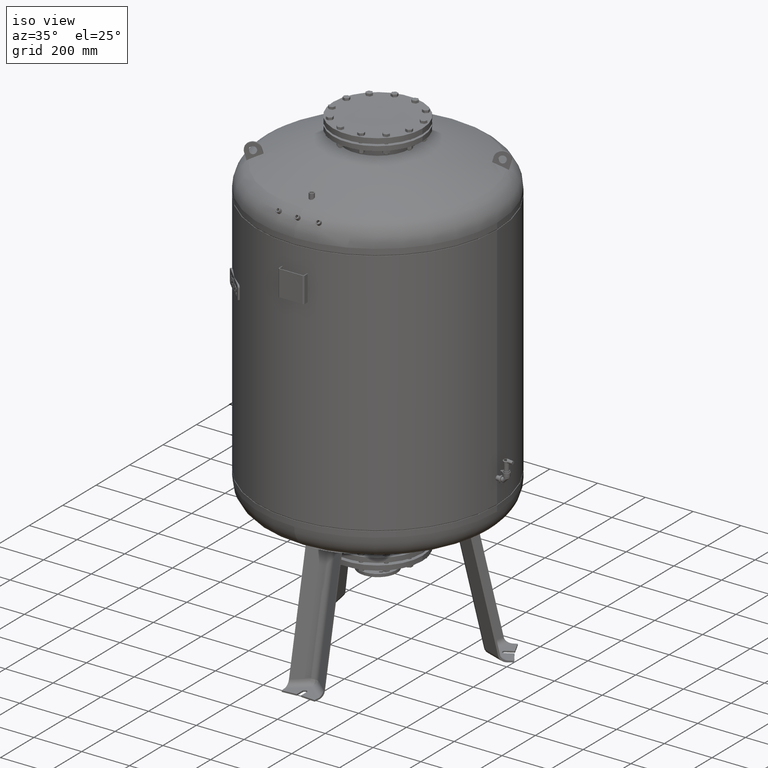
[diagram: clean part render]
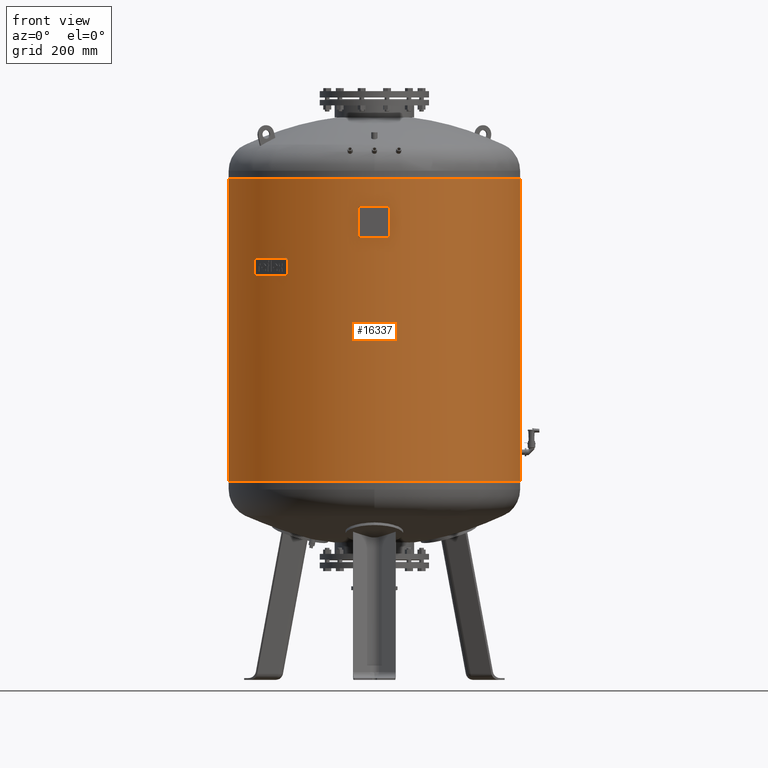
[diagram: tour spotlight — one face highlighted and labeled with its STEP entity id]
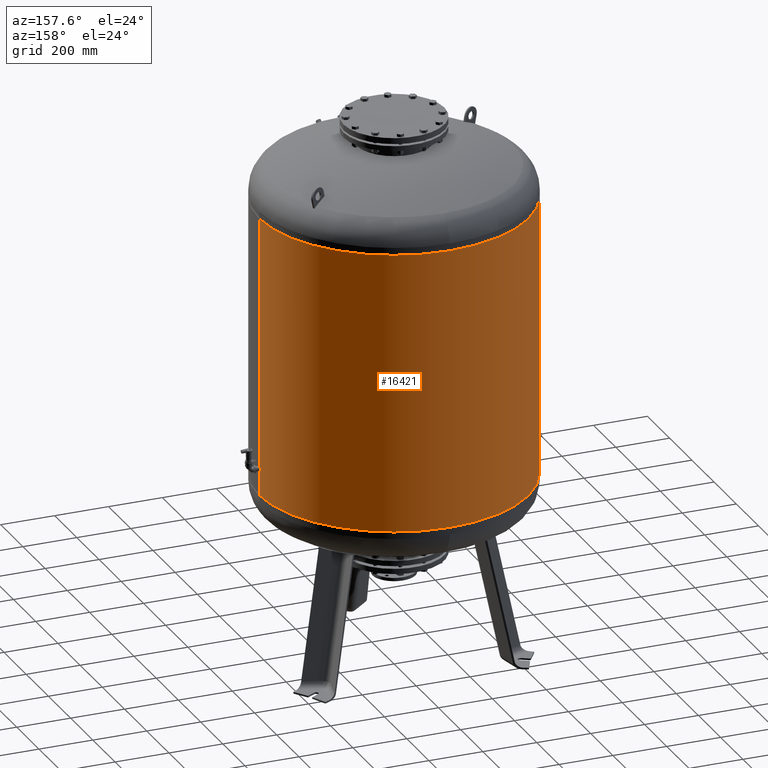
[diagram: tour spotlight — one face highlighted and labeled with its STEP entity id]
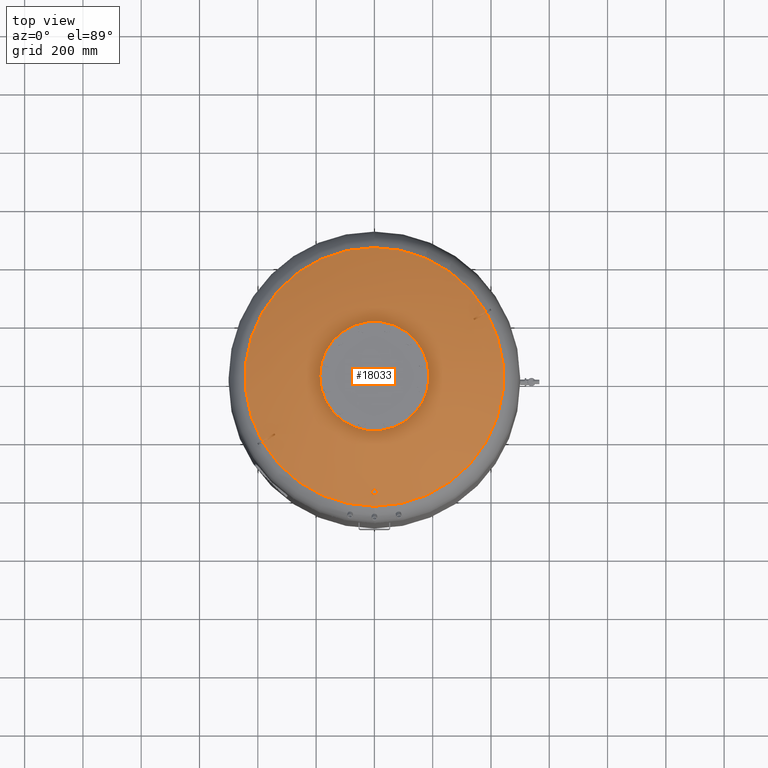
[diagram: tour spotlight — one face highlighted and labeled with its STEP entity id]
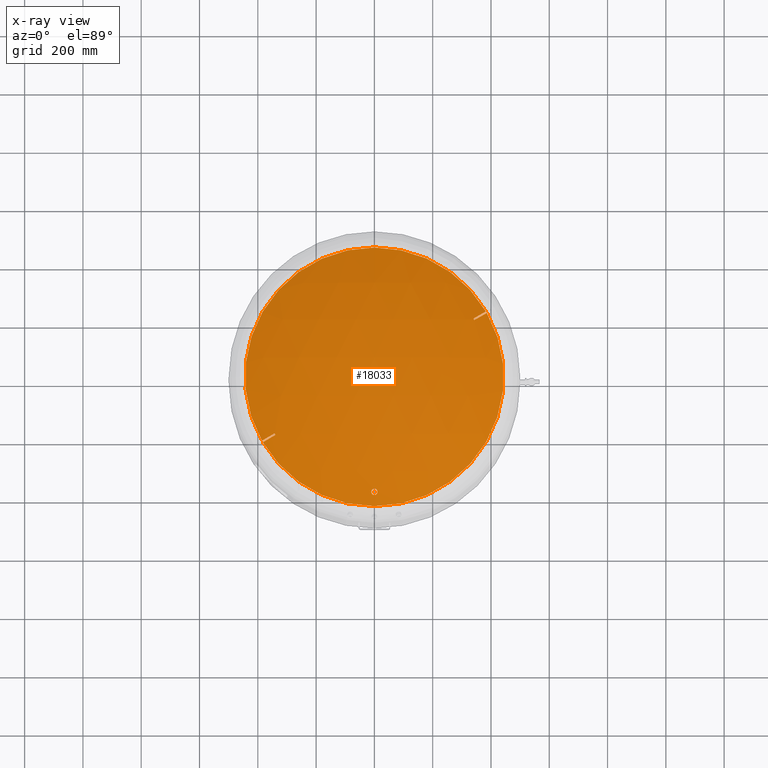
[diagram: x-ray of the same camera — body ghosted, this tour face saturated]
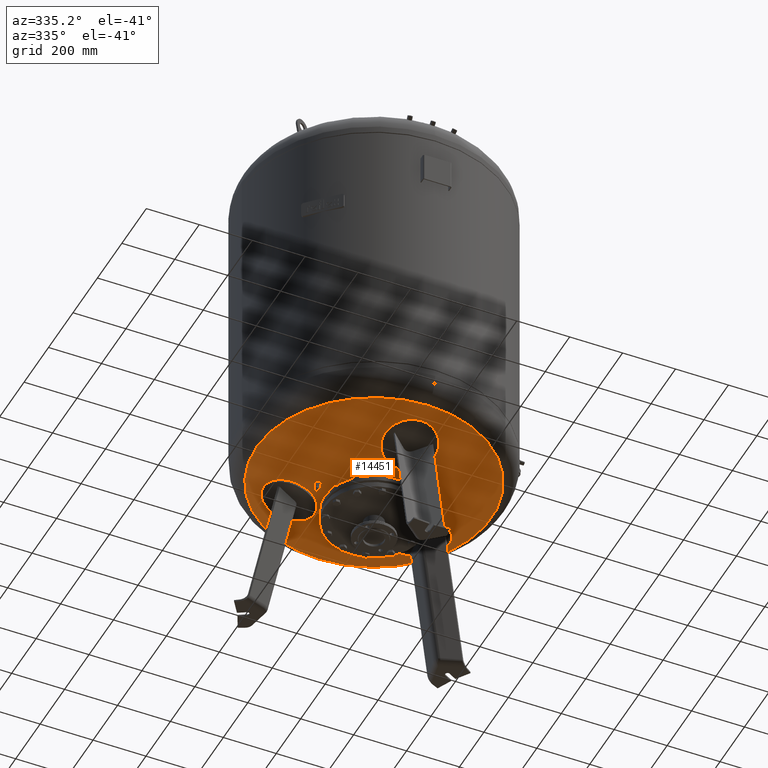
[diagram: tour spotlight — one face highlighted and labeled with its STEP entity id]
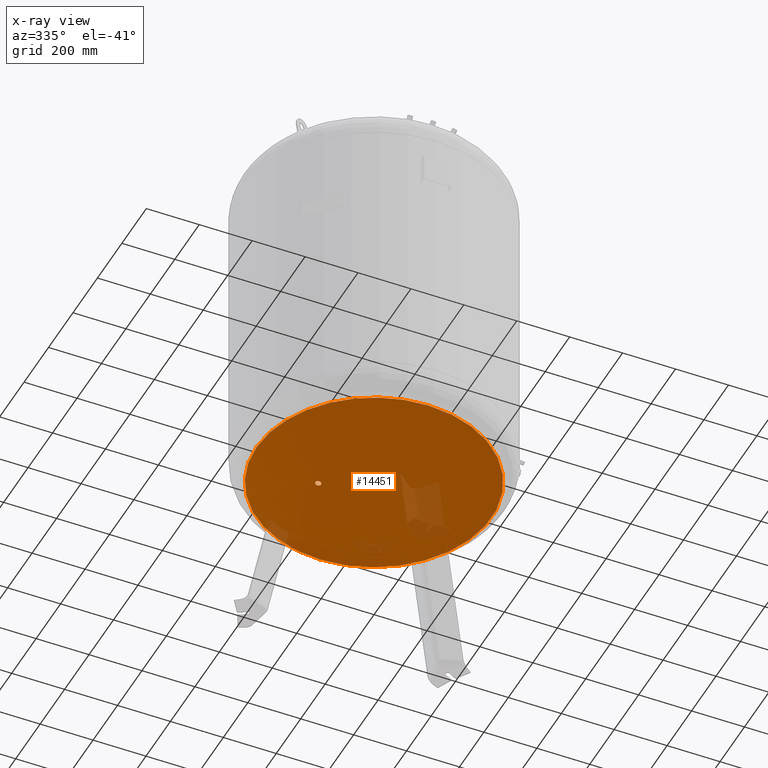
[diagram: x-ray of the same camera — body ghosted, this tour face saturated]
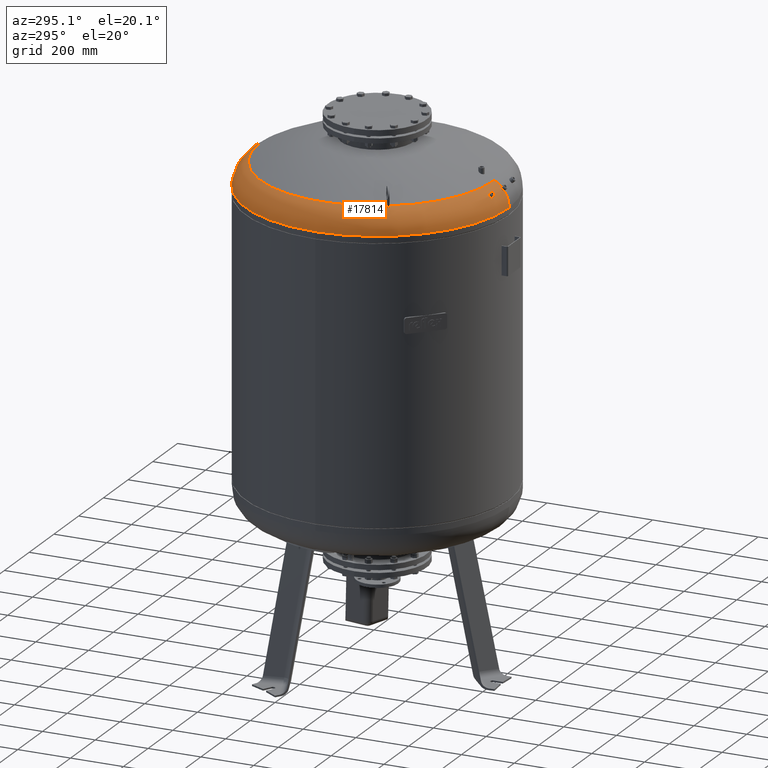
[diagram: tour spotlight — one face highlighted and labeled with its STEP entity id]
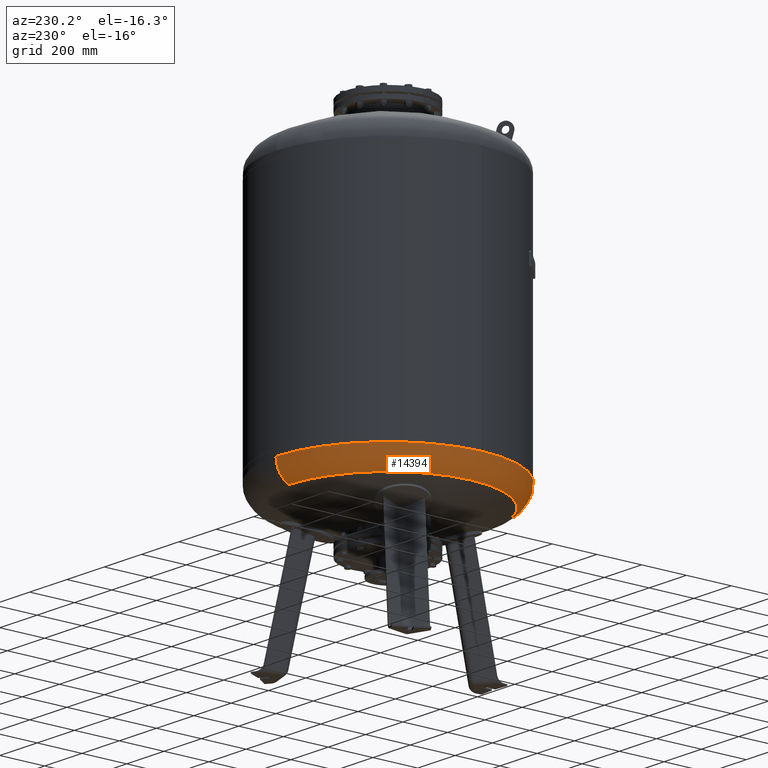
[diagram: tour spotlight — one face highlighted and labeled with its STEP entity id]
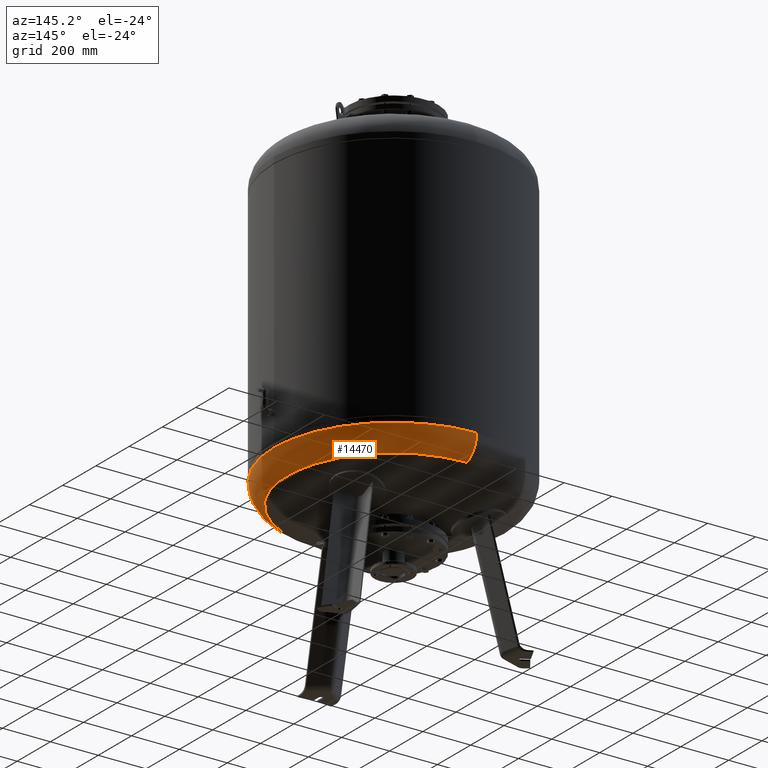
[diagram: tour spotlight — one face highlighted and labeled with its STEP entity id]
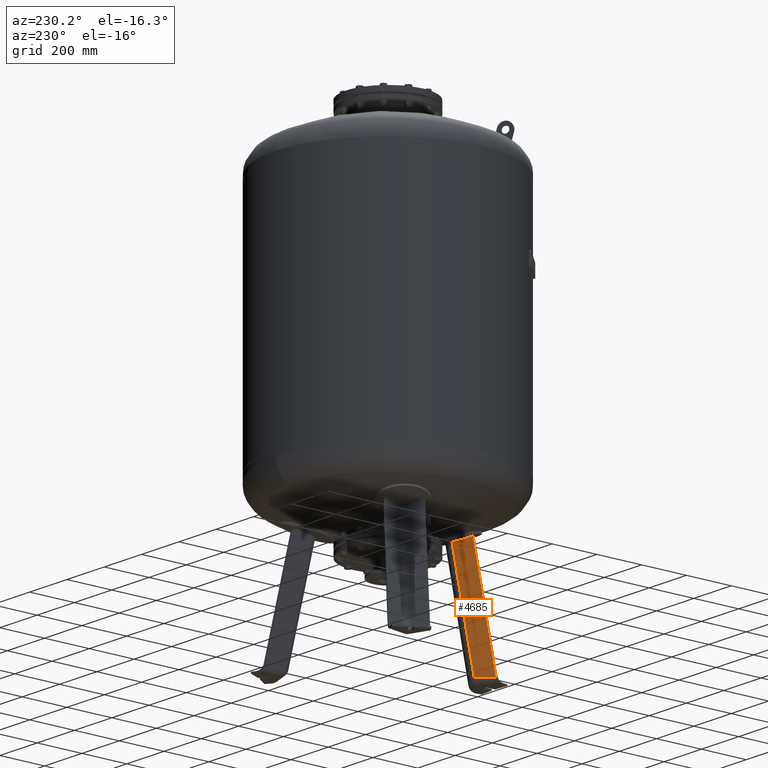
[diagram: tour spotlight — one face highlighted and labeled with its STEP entity id]
A machine part: a face-by-face anatomy tour. The part has 940 B-rep faces; the first image is the clean iso view, then the 8 largest visible faces are spotlighted one at a time (largest first), each with its STEP entity span.

Face 1 — front view, entity #16337. In plain terms, the highlighted cylindrical surface (partial cylindrical patch) has radius 500 mm, axis along (0, 0, 1).
Definition (entity closure, byte-faithful):
#16296=CARTESIAN_POINT('',(8.297411E-015,0.0,1452.250000000000000));
#16297=DIRECTION('',(3.104738E-017,0.0,1.0));
#16298=DIRECTION('',(1.0,0.0,0.0));
#16299=AXIS2_PLACEMENT_3D('',#16296,#16297,#16298);
#16300=CYLINDRICAL_SURFACE('',#16299,500.000000000000570);
#16301=CARTESIAN_POINT('',(500.000000000000570,0.0,1719.500000000000000));
#16302=VERTEX_POINT('',#16301);
#16303=CARTESIAN_POINT('',(499.999999999999890,0.0,680.500000000000000));
#16304=VERTEX_POINT('',#16303);
#16305=CARTESIAN_POINT('',(500.000000000000570,0.0,1719.500000000000000));
#16306=DIRECTION('',(0.0,0.0,-1.0));
#16307=VECTOR('',#16306,1039.0);
#16308=LINE('',#16305,#16307);
#16309=EDGE_CURVE('',#16302,#16304,#16308,.T.);
#16310=ORIENTED_EDGE('',*,*,#16309,.F.);
#16311=CARTESIAN_POINT('',(-500.000000000000570,-6.123032E-014,1719.500000000000000));
#16312=VERTEX_POINT('',#16311);
#16313=CARTESIAN_POINT('',(1.659482E-014,0.0,1719.500000000000000));
#16314=DIRECTION('',(0.0,0.0,1.0));
#16315=DIRECTION('',(1.0,0.0,0.0));
#16316=AXIS2_PLACEMENT_3D('',#16313,#16314,#16315);
#16317=CIRCLE('',#16316,500.000000000000570);
#16318=EDGE_CURVE('',#16312,#16302,#16317,.T.);
#16319=ORIENTED_EDGE('',*,*,#16318,.F.);
#16320=CARTESIAN_POINT('',(-499.999999999999890,-6.123032E-014,680.500000000000000));
#16321=VERTEX_POINT('',#16320);
#16322=CARTESIAN_POINT('',(-500.000000000000570,-6.123032E-014,1719.500000000000000));
#16323=DIRECTION('',(0.0,0.0,-1.0));
#16324=VECTOR('',#16323,1039.0);
#16325=LINE('',#16322,#16324);
#16326=EDGE_CURVE('',#16312,#16321,#16325,.T.);
#16327=ORIENTED_EDGE('',*,*,#16326,.T.);
#16328=CARTESIAN_POINT('',(-1.659482E-014,0.0,680.500000000000000));
#16329=DIRECTION('',(0.0,0.0,1.0));
#16330=DIRECTION('',(1.0,0.0,0.0));
#16331=AXIS2_PLACEMENT_3D('',#16328,#16329,#16330);
#16332=CIRCLE('',#16331,499.999999999999890);
#16333=EDGE_CURVE('',#16321,#16304,#16332,.T.);
#16334=ORIENTED_EDGE('',*,*,#16333,.T.);
#16335=EDGE_LOOP('',(#16310,#16319,#16327,#16334));
#16336=FACE_OUTER_BOUND('',#16335,.T.);
#16337=ADVANCED_FACE('',(#16336),#16300,.T.);

Face 2 — auxiliary view, entity #16421. In plain terms, the highlighted cylindrical surface (partial cylindrical patch) has radius 500 mm, axis along (0, 0, 1).
Definition (entity closure, byte-faithful):
#16301=CARTESIAN_POINT('',(500.000000000000570,0.0,1719.500000000000000));
#16302=VERTEX_POINT('',#16301);
#16303=CARTESIAN_POINT('',(499.999999999999890,0.0,680.500000000000000));
#16304=VERTEX_POINT('',#16303);
#16305=CARTESIAN_POINT('',(500.000000000000570,0.0,1719.500000000000000));
#16306=DIRECTION('',(0.0,0.0,-1.0));
#16307=VECTOR('',#16306,1039.0);
#16308=LINE('',#16305,#16307);
#16309=EDGE_CURVE('',#16302,#16304,#16308,.T.);
#16311=CARTESIAN_POINT('',(-500.000000000000570,-6.123032E-014,1719.500000000000000));
#16312=VERTEX_POINT('',#16311);
#16320=CARTESIAN_POINT('',(-499.999999999999890,-6.123032E-014,680.500000000000000));
#16321=VERTEX_POINT('',#16320);
#16322=CARTESIAN_POINT('',(-500.000000000000570,-6.123032E-014,1719.500000000000000));
#16323=DIRECTION('',(0.0,0.0,-1.0));
#16324=VECTOR('',#16323,1039.0);
#16325=LINE('',#16322,#16324);
#16326=EDGE_CURVE('',#16312,#16321,#16325,.T.);
#16394=CARTESIAN_POINT('',(-1.659482E-014,0.0,680.500000000000000));
#16395=DIRECTION('',(0.0,0.0,1.0));
#16396=DIRECTION('',(1.0,0.0,0.0));
#16397=AXIS2_PLACEMENT_3D('',#16394,#16395,#16396);
#16398=CIRCLE('',#16397,499.999999999999890);
#16399=EDGE_CURVE('',#16304,#16321,#16398,.T.);
#16404=CARTESIAN_POINT('',(8.297411E-015,0.0,1452.250000000000000));
#16405=DIRECTION('',(3.104738E-017,0.0,1.0));
#16406=DIRECTION('',(1.0,0.0,0.0));
#16407=AXIS2_PLACEMENT_3D('',#16404,#16405,#16406);
#16408=CYLINDRICAL_SURFACE('',#16407,500.000000000000570);
#16409=ORIENTED_EDGE('',*,*,#16309,.T.);
#16410=ORIENTED_EDGE('',*,*,#16399,.T.);
#16411=ORIENTED_EDGE('',*,*,#16326,.F.);
#16412=CARTESIAN_POINT('',(1.659482E-014,0.0,1719.500000000000000));
#16413=DIRECTION('',(0.0,0.0,1.0));
#16414=DIRECTION('',(1.0,0.0,0.0));
#16415=AXIS2_PLACEMENT_3D('',#16412,#16413,#16414);
#16416=CIRCLE('',#16415,500.000000000000570);
#16417=EDGE_CURVE('',#16302,#16312,#16416,.T.);
#16418=ORIENTED_EDGE('',*,*,#16417,.F.);
#16419=EDGE_LOOP('',(#16409,#16410,#16411,#16418));
#16420=FACE_OUTER_BOUND('',#16419,.T.);
#16421=ADVANCED_FACE('',(#16420),#16408,.T.);

Face 3 — top view, entity #18033. An x-ray twin of the same camera follows (body ghosted, this face saturated) — the face is partly hidden behind the body. In plain terms, the highlighted spherical surface has radius 1006 mm.
Definition (entity closure, byte-faithful):
#17253=CARTESIAN_POINT('',(-3.908790E-014,-405.650000000000260,1854.588984020556200));
#17254=VERTEX_POINT('',#17253);
#17270=CARTESIAN_POINT('',(-3.640557E-014,-384.350000000000310,1863.683321083045000));
#17271=VERTEX_POINT('',#17270);
#17278=CARTESIAN_POINT('',(-3.640557E-014,-384.350000000000310,1863.683321083045000));
#17279=CARTESIAN_POINT('',(-0.665860152353655,-384.350000000000310,1863.683321083045000));
#17280=CARTESIAN_POINT('',(-1.352442942655010,-384.413493201343950,1863.656345664296600));
#17281=CARTESIAN_POINT('',(-2.713633355070848,-384.678206448291690,1863.543865327939600));
#17282=CARTESIAN_POINT('',(-3.388255468701884,-384.879363254131820,1863.458386961982800));
#17283=CARTESIAN_POINT('',(-4.677454669311818,-385.406826358996680,1863.234199350034900));
#17284=CARTESIAN_POINT('',(-5.293206366508510,-385.733580979358980,1863.095298570944600));
#17285=CARTESIAN_POINT('',(-6.428331697670093,-386.481719264671140,1862.777177035073200));
#17286=CARTESIAN_POINT('',(-6.947700117297760,-386.903109139287950,1862.597952275997200));
#17287=CARTESIAN_POINT('',(-7.909636287544324,-387.834081206853450,1862.201861809002800));
#17288=CARTESIAN_POINT('',(-8.376160366441745,-388.383081861034950,1861.968214492085100));
#17289=CARTESIAN_POINT('',(-9.192501053923625,-389.573989263622760,1861.461152965227000));
#17290=CARTESIAN_POINT('',(-9.542402861482010,-390.215846098780390,1861.187758697381000));
#17291=CARTESIAN_POINT('',(-10.101594014471235,-391.549872709911260,1860.619263158526100));
#17292=CARTESIAN_POINT('',(-10.311280290466055,-392.242948286479990,1860.323775010501800));
#17293=CARTESIAN_POINT('',(-10.585512486448511,-393.632242428390440,1859.731167120131900));
#17294=CARTESIAN_POINT('',(-10.650000000000041,-394.328470643908420,1859.434042975025200));
#17295=CARTESIAN_POINT('',(-10.650000000000041,-395.671928854454110,1858.860441368647100));
#17296=CARTESIAN_POINT('',(-10.585436755065611,-396.368459275389510,1858.562914493158800));
#17297=CARTESIAN_POINT('',(-10.310997028739381,-397.758168296740220,1857.968999874574400));
#17298=CARTESIAN_POINT('',(-10.101180573862214,-398.451357011695900,1857.672608062775900));
#17299=CARTESIAN_POINT('',(-9.541744437114174,-399.785480792532890,1857.101906129284300));
#17300=CARTESIAN_POINT('',(-9.191730053175796,-400.427319361017400,1856.827210366023300));
#17301=CARTESIAN_POINT('',(-8.375195247171206,-401.618141837792960,1856.317358849592200));
#17302=CARTESIAN_POINT('',(-7.908589297177705,-402.167076661190660,1856.082225431730900));
#17303=CARTESIAN_POINT('',(-6.946718708499929,-403.097708589657710,1855.683472710236900));
#17304=CARTESIAN_POINT('',(-6.427520590182271,-403.518874737441710,1855.502952873024500));
#17305=CARTESIAN_POINT('',(-5.292718252443229,-404.266681241268540,1855.182351663167100));
#17306=CARTESIAN_POINT('',(-4.677118496836026,-404.593327823473600,1855.042269013025400));
#17307=CARTESIAN_POINT('',(-3.388156219151599,-405.120660706392070,1854.816088223712100));
#17308=CARTESIAN_POINT('',(-2.713616870227714,-405.321795323072650,1854.729798811288700));
#17309=CARTESIAN_POINT('',(-1.352501892994667,-405.586496768903600,1854.616232898850700));
#17310=CARTESIAN_POINT('',(-0.665911592797193,-405.650000000000260,1854.588984020556400));
#17311=CARTESIAN_POINT('',(-3.908790E-014,-405.650000000000260,1854.588984020556400));
#17312=B_SPLINE_CURVE_WITH_KNOTS('',3,(#17278,#17279,#17280,#17281,#17282,#17283,#17284,#17285,#17286,#17287,#17288,#17289,#17290,#17291,#17292,#17293,#17294,#17295,#17296,#17297,#17298,#17299,#17300,#17301,#17302,#17303,#17304,#17305,#17306,#17307,#17308,#17309,#17310,#17311),.UNSPECIFIED.,.F.,.U.,(4,2,2,2,2,2,2,2,2,2,2,2,2,2,2,2,4),(33.510705381107229,35.508285838168085,37.505866295228941,39.503446752289797,41.501027209350653,43.691556182371102,45.882085155391550,48.072614128411999,50.263143101432441,52.454975238236486,54.646807375040531,56.838639511844576,59.030471648648621,61.028206427040075,63.025941205431536,65.023675983822997,67.021410762214458),.UNSPECIFIED.);
#17313=EDGE_CURVE('',#17271,#17254,#17312,.T.);
#17534=CARTESIAN_POINT('',(2.959885E-014,443.777777777777600,1836.827383252533800));
#17535=VERTEX_POINT('',#17534);
#17543=CARTESIAN_POINT('',(382.814047410498800,224.481894937152840,1836.827383252533800));
#17544=VERTEX_POINT('',#17543);
#17545=CARTESIAN_POINT('',(1.205637E-015,-1.895250E-014,1836.827383252533800));
#17546=DIRECTION('',(0.0,0.0,-1.0));
#17547=DIRECTION('',(1.0,0.0,0.0));
#17548=AXIS2_PLACEMENT_3D('',#17545,#17546,#17547);
#17549=CIRCLE('',#17548,443.777777777777600);
#17550=EDGE_CURVE('',#17535,#17544,#17549,.T.);
#17577=CARTESIAN_POINT('',(385.814047410498740,219.285742514446160,1836.827383252533800));
#17578=VERTEX_POINT('',#17577);
#17590=CARTESIAN_POINT('',(-2.474646E-014,-443.777777777777600,1836.827383252533800));
#17591=VERTEX_POINT('',#17590);
#17592=CARTESIAN_POINT('',(1.205637E-015,-1.895250E-014,1836.827383252533800));
#17593=DIRECTION('',(0.0,0.0,-1.0));
#17594=DIRECTION('',(1.0,0.0,0.0));
#17595=AXIS2_PLACEMENT_3D('',#17592,#17593,#17594);
#17596=CIRCLE('',#17595,443.777777777777600);
#17597=EDGE_CURVE('',#17578,#17591,#17596,.T.);
#17714=CARTESIAN_POINT('',(-382.814047410493060,-224.481894937162560,1836.827383252533800));
#17715=VERTEX_POINT('',#17714);
#17716=CARTESIAN_POINT('',(1.205637E-015,-1.895250E-014,1836.827383252533800));
#17717=DIRECTION('',(0.0,0.0,-1.0));
#17718=DIRECTION('',(1.0,0.0,0.0));
#17719=AXIS2_PLACEMENT_3D('',#17716,#17717,#17718);
#17720=CIRCLE('',#17719,443.777777777777600);
#17721=EDGE_CURVE('',#17591,#17715,#17720,.T.);
#17748=CARTESIAN_POINT('',(-385.814047410493120,-219.285742514455960,1836.827383252533800));
#17749=VERTEX_POINT('',#17748);
#17761=CARTESIAN_POINT('',(1.205637E-015,-1.895250E-014,1836.827383252533800));
#17762=DIRECTION('',(0.0,0.0,-1.0));
#17763=DIRECTION('',(1.0,0.0,0.0));
#17764=AXIS2_PLACEMENT_3D('',#17761,#17762,#17763);
#17765=CIRCLE('',#17764,443.777777777777600);
#17766=EDGE_CURVE('',#17749,#17535,#17765,.T.);
#17932=CARTESIAN_POINT('',(9.910502E-014,-1.847992E-013,933.999999999999890));
#17933=DIRECTION('',(0.0,-1.0,0.0));
#17934=DIRECTION('',(-1.0,0.0,0.0));
#17935=AXIS2_PLACEMENT_3D('',#17932,#17933,#17934);
#17936=SPHERICAL_SURFACE('',#17935,1006.000000000000100);
#17937=CARTESIAN_POINT('',(-339.751865728368670,-199.619932751095800,1859.611447737408100));
#17938=VERTEX_POINT('',#17937);
#17939=CARTESIAN_POINT('',(1.500000000004920,-2.598076211361895,933.999999999999890));
#17940=DIRECTION('',(0.499999999999994,-0.866025403784442,0.0));
#17941=DIRECTION('',(0.0,0.0,1.0));
#17942=AXIS2_PLACEMENT_3D('',#17939,#17940,#17941);
#17943=CIRCLE('',#17942,1005.995526829021300);
#17944=EDGE_CURVE('',#17938,#17715,#17943,.T.);
#17945=ORIENTED_EDGE('',*,*,#17944,.T.);
#17946=ORIENTED_EDGE('',*,*,#17721,.F.);
#17947=ORIENTED_EDGE('',*,*,#17597,.F.);
#17948=CARTESIAN_POINT('',(342.751865728374640,194.423780328378940,1859.611447737408100));
#17949=VERTEX_POINT('',#17948);
#17950=CARTESIAN_POINT('',(1.500000000004958,-2.598076211361873,933.999999999999890));
#17951=DIRECTION('',(0.500000000000006,-0.866025403784435,0.0));
#17952=DIRECTION('',(0.0,0.0,1.0));
#17953=AXIS2_PLACEMENT_3D('',#17950,#17951,#17952);
#17954=CIRCLE('',#17953,1005.995526829021500);
#17955=EDGE_CURVE('',#17578,#17949,#17954,.T.);
#17956=ORIENTED_EDGE('',*,*,#17955,.T.);
#17957=CARTESIAN_POINT('',(339.751865728374580,199.619932751085570,1859.611447737407800));
#17958=VERTEX_POINT('',#17957);
#17959=CARTESIAN_POINT('',(110.683197430718480,63.902973831394576,898.593010303164870));
#17960=DIRECTION('',(-0.834590199910595,-0.481850876581413,0.266981143436977));
#17961=DIRECTION('',(0.0,0.484652475916126,0.874706795211040));
#17962=AXIS2_PLACEMENT_3D('',#17959,#17960,#17961);
#17963=CIRCLE('',#17962,997.220128568725610);
#17964=EDGE_CURVE('',#17949,#17958,#17963,.T.);
#17965=ORIENTED_EDGE('',*,*,#17964,.T.);
#17966=CARTESIAN_POINT('',(-1.499999999995094,2.598076211344762,933.999999999999890));
#17967=DIRECTION('',(-0.500000000000006,0.866025403784435,0.0));
#17968=DIRECTION('',(0.0,0.0,-1.0));
#17969=AXIS2_PLACEMENT_3D('',#17966,#17967,#17968);
#17970=CIRCLE('',#17969,1005.995526829021500);
#17971=EDGE_CURVE('',#17958,#17544,#17970,.T.);
#17972=ORIENTED_EDGE('',*,*,#17971,.T.);
#17973=ORIENTED_EDGE('',*,*,#17550,.F.);
#17974=ORIENTED_EDGE('',*,*,#17766,.F.);
#17975=CARTESIAN_POINT('',(-342.751865728368730,-194.423780328389170,1859.611447737407800));
#17976=VERTEX_POINT('',#17975);
#17977=CARTESIAN_POINT('',(-1.499999999995070,2.598076211344809,933.999999999999890));
#17978=DIRECTION('',(-0.499999999999994,0.866025403784442,0.0));
#17979=DIRECTION('',(0.0,0.0,-1.0));
#17980=AXIS2_PLACEMENT_3D('',#17977,#17978,#17979);
#17981=CIRCLE('',#17980,1005.995526829021300);
#17982=EDGE_CURVE('',#17749,#17976,#17981,.T.);
#17983=ORIENTED_EDGE('',*,*,#17982,.T.);
#17984=CARTESIAN_POINT('',(-110.683197430719060,-63.902973831393346,898.593010303164870));
#17985=DIRECTION('',(0.834590199910602,0.481850876581402,0.266981143436977));
#17986=DIRECTION('',(0.0,0.484652475916135,-0.874706795211035));
#17987=AXIS2_PLACEMENT_3D('',#17984,#17985,#17986);
#17988=CIRCLE('',#17987,997.220128568725390);
#17989=EDGE_CURVE('',#17976,#17938,#17988,.T.);
#17990=ORIENTED_EDGE('',*,*,#17989,.T.);
#17991=EDGE_LOOP('',(#17945,#17946,#17947,#17956,#17965,#17972,#17973,#17974,#17983,#17990));
#17992=FACE_OUTER_BOUND('',#17991,.T.);
#17993=CARTESIAN_POINT('',(-3.908790E-014,-405.650000000000260,1854.588984020556200));
#17994=CARTESIAN_POINT('',(0.665911592797114,-405.650000000000260,1854.588984020556400));
#17995=CARTESIAN_POINT('',(1.352501892994589,-405.586496768903600,1854.616232898850700));
#17996=CARTESIAN_POINT('',(2.713616870227634,-405.321795323072650,1854.729798811288700));
#17997=CARTESIAN_POINT('',(3.388156219151519,-405.120660706392070,1854.816088223712100));
#17998=CARTESIAN_POINT('',(4.677118496835944,-404.593327823473600,1855.042269013025400));
#17999=CARTESIAN_POINT('',(5.292718252443149,-404.266681241268540,1855.182351663167100));
#18000=CARTESIAN_POINT('',(6.427520590182191,-403.518874737441710,1855.502952873024500));
#18001=CARTESIAN_POINT('',(6.946718708499848,-403.097708589657710,1855.683472710236900));
#18002=CARTESIAN_POINT('',(7.908589297177626,-402.167076661190660,1856.082225431730900));
#18003=CARTESIAN_POINT('',(8.375195247171130,-401.618141837792960,1856.317358849592200));
#18004=CARTESIAN_POINT('',(9.191730053175720,-400.427319361017400,1856.827210366023300));
#18005=CARTESIAN_POINT('',(9.541744437114099,-399.785480792532890,1857.101906129284300));
#18006=CARTESIAN_POINT('',(10.101180573862139,-398.451357011695900,1857.672608062775900));
#18007=CARTESIAN_POINT('',(10.310997028739306,-397.758168296740220,1857.968999874574400));
#18008=CARTESIAN_POINT('',(10.585436755065537,-396.368459275389510,1858.562914493158800));
#18009=CARTESIAN_POINT('',(10.649999999999967,-395.671928854454110,1858.860441368647100));
#18010=CARTESIAN_POINT('',(10.649999999999967,-394.328470643908420,1859.434042975025200));
#18011=CARTESIAN_POINT('',(10.585512486448435,-393.632242428390440,1859.731167120131900));
#18012=CARTESIAN_POINT('',(10.311280290465971,-392.242948286479930,1860.323775010501800));
#18013=CARTESIAN_POINT('',(10.101594014471120,-391.549872709911200,1860.619263158526100));
#18014=CARTESIAN_POINT('',(9.542402861481886,-390.215846098780330,1861.187758697381000));
#18015=CARTESIAN_POINT('',(9.192501053923527,-389.573989263622650,1861.461152965227300));
#18016=CARTESIAN_POINT('',(8.376160366441681,-388.383081861034900,1861.968214492085100));
#18017=CARTESIAN_POINT('',(7.909636287544253,-387.834081206853510,1862.201861809002800));
#18018=CARTESIAN_POINT('',(6.947700117297689,-386.903109139287950,1862.597952275997200));
#18019=CARTESIAN_POINT('',(6.428331697670018,-386.481719264671140,1862.777177035073200));
#18020=CARTESIAN_POINT('',(5.293206366508434,-385.733580979358980,1863.095298570944600));
#18021=CARTESIAN_POINT('',(4.677454669311745,-385.406826358996680,1863.234199350034900));
#18022=CARTESIAN_POINT('',(3.388255468701813,-384.879363254131820,1863.458386961982800));
#18023=CARTESIAN_POINT('',(2.713633355070776,-384.678206448291690,1863.543865327939600));
#18024=CARTESIAN_POINT('',(1.352442942654939,-384.413493201343950,1863.656345664296600));
#18025=CARTESIAN_POINT('',(0.665860152353582,-384.350000000000310,1863.683321083045000));
#18026=CARTESIAN_POINT('',(-3.640557E-014,-384.350000000000310,1863.683321083045000));
#18027=B_SPLINE_CURVE_WITH_KNOTS('',3,(#17993,#17994,#17995,#17996,#17997,#17998,#17999,#18000,#18001,#18002,#18003,#18004,#18005,#18006,#18007,#18008,#18009,#18010,#18011,#18012,#18013,#18014,#18015,#18016,#18017,#18018,#18019,#18020,#18021,#18022,#18023,#18024,#18025,#18026),.UNSPECIFIED.,.F.,.U.,(4,2,2,2,2,2,2,2,2,2,2,2,2,2,2,2,4),(0.0,1.997734778391459,3.995469556782918,5.993204335174378,7.990939113565837,10.182771250369882,12.374603387173927,14.566435523977972,16.758267660782018,18.948796633802466,21.139325606822911,23.329854579843357,25.520383552863805,27.517964009924661,29.515544466985517,31.513124924046373,33.510705381107229),.UNSPECIFIED.);
#18028=EDGE_CURVE('',#17254,#17271,#18027,.T.);
#18029=ORIENTED_EDGE('',*,*,#18028,.F.);
#18030=ORIENTED_EDGE('',*,*,#17313,.F.);
#18031=EDGE_LOOP('',(#18029,#18030));
#18032=FACE_BOUND('',#18031,.T.);
#18033=ADVANCED_FACE('',(#17992,#18032),#17936,.T.);

Face 4 — auxiliary view, entity #14451. An x-ray twin of the same camera follows (body ghosted, this face saturated) — the face is partly hidden behind the body. In plain terms, the highlighted spherical surface has radius 1006 mm.
Definition (entity closure, byte-faithful):
#13837=CARTESIAN_POINT('',(-211.125624220251810,10.650000000000025,482.461211594779570));
#13838=VERTEX_POINT('',#13837);
#13854=CARTESIAN_POINT('',(-211.125624220251840,-10.649999999999979,482.461211594779460));
#13855=VERTEX_POINT('',#13854);
#13862=CARTESIAN_POINT('',(-211.125624220251840,-10.649999999999979,482.461211594779460));
#13863=CARTESIAN_POINT('',(-211.779366837099190,-10.649999999999979,482.601543445122730));
#13864=CARTESIAN_POINT('',(-212.455440132488210,-10.586020811985057,482.746668812052750));
#13865=CARTESIAN_POINT('',(-213.800320524656060,-10.316508147236522,483.035359855748140));
#13866=CARTESIAN_POINT('',(-214.469138658367290,-10.111032286166788,483.178927901604770));
#13867=CARTESIAN_POINT('',(-215.751922552204920,-9.567592266834247,483.454289478277810));
#13868=CARTESIAN_POINT('',(-216.366909830243170,-9.229195343095414,483.586302287240020));
#13869=CARTESIAN_POINT('',(-217.504221535740330,-8.447146982177264,483.830436995820550));
#13870=CARTESIAN_POINT('',(-218.026513927107150,-8.003446810011665,483.942552018269230));
#13871=CARTESIAN_POINT('',(-218.951040347873370,-7.057872723294627,484.141010422898830));
#13872=CARTESIAN_POINT('',(-219.384856037971620,-6.523702616499612,484.234133109701360));
#13873=CARTESIAN_POINT('',(-220.149485393383970,-5.360524383798429,484.398268132717360));
#13874=CARTESIAN_POINT('',(-220.480346687044520,-4.731549010339346,484.469290692466470));
#13875=CARTESIAN_POINT('',(-221.011686484263920,-3.419585184995595,484.583347899797220));
#13876=CARTESIAN_POINT('',(-221.212588135663030,-2.735551894637916,484.626473379908990));
#13877=CARTESIAN_POINT('',(-221.476101469240830,-1.360073995507774,484.683039063670090));
#13878=CARTESIAN_POINT('',(-221.538656816071100,-0.668618097348863,484.696467174334880));
#13879=CARTESIAN_POINT('',(-221.538656816071100,0.668618097348903,484.696467174334880));
#13880=CARTESIAN_POINT('',(-221.476101469240830,1.360073995507815,484.683039063670090));
#13881=CARTESIAN_POINT('',(-221.212588135663030,2.735551894637959,484.626473379908990));
#13882=CARTESIAN_POINT('',(-221.011686484263920,3.419585184995639,484.583347899797220));
#13883=CARTESIAN_POINT('',(-220.480346687044520,4.731549010339391,484.469290692466470));
#13884=CARTESIAN_POINT('',(-220.149485393383940,5.360524383798476,484.398268132717360));
#13885=CARTESIAN_POINT('',(-219.384856037971590,6.523702616499659,484.234133109701360));
#13886=CARTESIAN_POINT('',(-218.951040347873370,7.057872723294675,484.141010422898830));
#13887=CARTESIAN_POINT('',(-218.026513927107150,8.003446810011713,483.942552018269230));
#13888=CARTESIAN_POINT('',(-217.504221535740330,8.447146982177307,483.830436995820550));
#13889=CARTESIAN_POINT('',(-216.366909830243170,9.229195343095451,483.586302287240020));
#13890=CARTESIAN_POINT('',(-215.751922552204920,9.567592266834295,483.454289478277930));
#13891=CARTESIAN_POINT('',(-214.469138658367290,10.111032286166836,483.178927901604880));
#13892=CARTESIAN_POINT('',(-213.800320524656060,10.316508147236567,483.035359855748140));
#13893=CARTESIAN_POINT('',(-212.455440132488210,10.586020811985103,482.746668812052750));
#13894=CARTESIAN_POINT('',(-211.779366837099190,10.650000000000025,482.601543445122730));
#13895=CARTESIAN_POINT('',(-211.125624220251840,10.650000000000025,482.461211594779460));
#13896=B_SPLINE_CURVE_WITH_KNOTS('',3,(#13862,#13863,#13864,#13865,#13866,#13867,#13868,#13869,#13870,#13871,#13872,#13873,#13874,#13875,#13876,#13877,#13878,#13879,#13880,#13881,#13882,#13883,#13884,#13885,#13886,#13887,#13888,#13889,#13890,#13891,#13892,#13893,#13894,#13895),.UNSPECIFIED.,.F.,.U.,(4,2,2,2,2,2,2,2,2,2,2,2,2,2,2,2,4),(32.094068530974205,34.099972799808725,36.105877068643252,38.111781337477773,40.117685606312293,42.123539898358942,44.129394190405584,46.135248482452226,48.141102774498876,50.146957066545525,52.152811358592167,54.158665650638810,56.164519942685459,58.170424211519979,60.176328480354499,62.182232749189019,64.188137018023539),.UNSPECIFIED.);
#13897=EDGE_CURVE('',#13855,#13838,#13896,.T.);
#14350=CARTESIAN_POINT('',(1.211146E-014,-443.777777777777600,563.172616747466120));
#14351=VERTEX_POINT('',#14350);
#14367=CARTESIAN_POINT('',(-4.223385E-014,443.777777777777600,563.172616747466350));
#14368=VERTEX_POINT('',#14367);
#14376=CARTESIAN_POINT('',(-443.777777777777600,-1.895250E-014,563.172616747466240));
#14377=VERTEX_POINT('',#14376);
#14378=CARTESIAN_POINT('',(-1.384064E-014,-1.895250E-014,563.172616747466240));
#14379=DIRECTION('',(0.0,0.0,1.0));
#14380=DIRECTION('',(-1.0,0.0,0.0));
#14381=AXIS2_PLACEMENT_3D('',#14378,#14379,#14380);
#14382=CIRCLE('',#14381,443.777777777777600);
#14383=EDGE_CURVE('',#14368,#14377,#14382,.T.);
#14385=CARTESIAN_POINT('',(-1.384064E-014,-1.895250E-014,563.172616747466240));
#14386=DIRECTION('',(0.0,0.0,1.0));
#14387=DIRECTION('',(-1.0,0.0,0.0));
#14388=AXIS2_PLACEMENT_3D('',#14385,#14386,#14387);
#14389=CIRCLE('',#14388,443.777777777777600);
#14390=EDGE_CURVE('',#14377,#14351,#14389,.T.);
#14395=CARTESIAN_POINT('',(-2.223045E-013,-1.847992E-013,1466.0));
#14396=DIRECTION('',(0.0,-1.0,0.0));
#14397=DIRECTION('',(1.0,0.0,0.0));
#14398=AXIS2_PLACEMENT_3D('',#14395,#14396,#14397);
#14399=SPHERICAL_SURFACE('',#14398,1006.000000000000100);
#14400=ORIENTED_EDGE('',*,*,#14390,.F.);
#14401=ORIENTED_EDGE('',*,*,#14383,.F.);
#14402=CARTESIAN_POINT('',(-1.384064E-014,-1.895250E-014,563.172616747466240));
#14403=DIRECTION('',(0.0,0.0,1.0));
#14404=DIRECTION('',(-1.0,0.0,0.0));
#14405=AXIS2_PLACEMENT_3D('',#14402,#14403,#14404);
#14406=CIRCLE('',#14405,443.777777777777600);
#14407=EDGE_CURVE('',#14351,#14368,#14406,.T.);
#14408=ORIENTED_EDGE('',*,*,#14407,.F.);
#14409=EDGE_LOOP('',(#14400,#14401,#14408));
#14410=FACE_OUTER_BOUND('',#14409,.T.);
#14411=CARTESIAN_POINT('',(-211.125624220251840,10.650000000000025,482.461211594779460));
#14412=CARTESIAN_POINT('',(-210.471881601776740,10.650000000000025,482.320879744086770));
#14413=CARTESIAN_POINT('',(-209.795808291734690,10.586020811668353,482.175754437149860));
#14414=CARTESIAN_POINT('',(-208.450927843160910,10.316508146035659,481.887063639687370));
#14415=CARTESIAN_POINT('',(-207.782109667580980,10.111032285181981,481.743495779879080));
#14416=CARTESIAN_POINT('',(-206.499325670120810,9.567592263440147,481.468134671375140));
#14417=CARTESIAN_POINT('',(-205.884338329224930,9.229195339867466,481.336122144238400));
#14418=CARTESIAN_POINT('',(-204.747026489921500,8.447146978150595,481.091988040865150));
#14419=CARTESIAN_POINT('',(-204.224734027310090,8.003446805672720,480.979873341086030));
#14420=CARTESIAN_POINT('',(-203.300207469747620,7.057872719210343,480.781415560182670));
#14421=CARTESIAN_POINT('',(-202.866391709050130,6.523702613103928,480.688293196180550));
#14422=CARTESIAN_POINT('',(-202.101762220856560,5.360524381699865,480.524158778579020));
#14423=CARTESIAN_POINT('',(-201.770900864883910,4.731549009030496,480.453136500767410));
#14424=CARTESIAN_POINT('',(-201.239560964986250,3.419585184399890,480.339079761801200));
#14425=CARTESIAN_POINT('',(-201.038659272105550,2.735551894433304,480.295954467818830));
#14426=CARTESIAN_POINT('',(-200.775145883929530,1.360073995652741,480.239389030676310));
#14427=CARTESIAN_POINT('',(-200.712590523707350,0.668618097514268,480.225960980274750));
#14428=CARTESIAN_POINT('',(-200.712590523707350,-0.668618097514221,480.225960980274750));
#14429=CARTESIAN_POINT('',(-200.775145883929530,-1.360073995652695,480.239389030676310));
#14430=CARTESIAN_POINT('',(-201.038659272105550,-2.735551894433257,480.295954467818830));
#14431=CARTESIAN_POINT('',(-201.239560964986250,-3.419585184399842,480.339079761801200));
#14432=CARTESIAN_POINT('',(-201.770900864883910,-4.731549009030447,480.453136500767410));
#14433=CARTESIAN_POINT('',(-202.101762220856560,-5.360524381699816,480.524158778579020));
#14434=CARTESIAN_POINT('',(-202.866391709050130,-6.523702613103879,480.688293196180550));
#14435=CARTESIAN_POINT('',(-203.300207469747620,-7.057872719210294,480.781415560182670));
#14436=CARTESIAN_POINT('',(-204.224734027310090,-8.003446805672674,480.979873341086030));
#14437=CARTESIAN_POINT('',(-204.747026489921500,-8.447146978150547,481.091988040865150));
#14438=CARTESIAN_POINT('',(-205.884338329224930,-9.229195339867419,481.336122144238400));
#14439=CARTESIAN_POINT('',(-206.499325670120810,-9.567592263440101,481.468134671375140));
#14440=CARTESIAN_POINT('',(-207.782109667580980,-10.111032285181935,481.743495779879080));
#14441=CARTESIAN_POINT('',(-208.450927843160910,-10.316508146035615,481.887063639687370));
#14442=CARTESIAN_POINT('',(-209.795808291734690,-10.586020811668309,482.175754437149860));
#14443=CARTESIAN_POINT('',(-210.471881601776740,-10.649999999999979,482.320879744086770));
#14444=CARTESIAN_POINT('',(-211.125624220251840,-10.649999999999979,482.461211594779460));
#14445=B_SPLINE_CURVE_WITH_KNOTS('',3,(#14411,#14412,#14413,#14414,#14415,#14416,#14417,#14418,#14419,#14420,#14421,#14422,#14423,#14424,#14425,#14426,#14427,#14428,#14429,#14430,#14431,#14432,#14433,#14434,#14435,#14436,#14437,#14438,#14439,#14440,#14441,#14442,#14443,#14444),.UNSPECIFIED.,.F.,.U.,(4,2,2,2,2,2,2,2,2,2,2,2,2,2,2,2,4),(0.0,2.005904273829041,4.011808547658083,6.017712821487124,8.023617095316165,10.029471387858898,12.035325680401632,14.041179972944366,16.047034265487099,18.052888558029835,20.058742850572568,22.064597143115300,24.070451435658036,26.076355709487078,28.082259983316121,30.088164257145163,32.094068530974205),.UNSPECIFIED.);
#14446=EDGE_CURVE('',#13838,#13855,#14445,.T.);
#14447=ORIENTED_EDGE('',*,*,#14446,.F.);
#14448=ORIENTED_EDGE('',*,*,#13897,.F.);
#14449=EDGE_LOOP('',(#14447,#14448));
#14450=FACE_BOUND('',#14449,.T.);
#14451=ADVANCED_FACE('',(#14410,#14450),#14399,.T.);

Face 5 — auxiliary view, entity #17814. In plain terms, the highlighted toroidal blend (fillet) surface has major radius 399.4 mm and minor (blend) radius 100.6 mm.
Definition (entity closure, byte-faithful):
#16573=CARTESIAN_POINT('',(-2.440638E-014,-481.277772533175660,1804.994541120563100));
#16574=VERTEX_POINT('',#16573);
#16590=CARTESIAN_POINT('',(-3.572896E-014,-469.189623608923340,1818.999930700816800));
#16591=VERTEX_POINT('',#16590);
#16598=CARTESIAN_POINT('',(-3.572896E-014,-469.189623608923280,1818.999930700816800));
#16599=CARTESIAN_POINT('',(-1.226614568455976,-469.189623608923280,1818.999930700816800));
#16600=CARTESIAN_POINT('',(-2.440717648108311,-469.363964897661620,1818.828366382545500));
#16601=CARTESIAN_POINT('',(-4.696576406388926,-470.032282362374760,1818.158492884890200));
#16602=CARTESIAN_POINT('',(-5.717066324786281,-470.517625088269260,1817.668325310572500));
#16603=CARTESIAN_POINT('',(-7.349723949792541,-471.663336317218350,1816.478958588720400));
#16604=CARTESIAN_POINT('',(-7.978856717115349,-472.293158318904320,1815.813464587332400));
#16605=CARTESIAN_POINT('',(-8.767180364449684,-473.476696610886850,1814.526605348238300));
#16606=CARTESIAN_POINT('',(-9.002643996097641,-474.002253429116140,1813.944603232691200));
#16607=CARTESIAN_POINT('',(-9.246130960251650,-475.003455273055120,1812.812034305301700));
#16608=CARTESIAN_POINT('',(-9.277536517919977,-475.473886739678110,1812.270248643852500));
#16609=CARTESIAN_POINT('',(-9.169418948993892,-476.443948320682070,1811.132547598934300));
#16610=CARTESIAN_POINT('',(-9.014004504818171,-476.938109963460190,1810.541074240647000));
#16611=CARTESIAN_POINT('',(-8.424922701287107,-478.044741868088010,1809.192077291173500));
#16612=CARTESIAN_POINT('',(-7.917004952702181,-478.629522433588760,1808.459244151971200));
#16613=CARTESIAN_POINT('',(-6.573564565873211,-479.680952611176170,1807.116329804000100));
#16614=CARTESIAN_POINT('',(-5.733244046862108,-480.131843135527730,1806.525314530713800));
#16615=CARTESIAN_POINT('',(-3.797661482623573,-480.837740836613590,1805.589750740730600));
#16616=CARTESIAN_POINT('',(-2.711502606082819,-481.079820122065480,1805.262399560773000));
#16617=CARTESIAN_POINT('',(-1.055885184957859,-481.250877908187250,1805.031042455411600));
#16618=CARTESIAN_POINT('',(-0.527815187818433,-481.277772533175660,1804.994541120563100));
#16619=CARTESIAN_POINT('',(-2.440638E-014,-481.277772533175660,1804.994541120563100));
#16620=B_SPLINE_CURVE_WITH_KNOTS('',3,(#16598,#16599,#16600,#16601,#16602,#16603,#16604,#16605,#16606,#16607,#16608,#16609,#16610,#16611,#16612,#16613,#16614,#16615,#16616,#16617,#16618,#16619),.UNSPECIFIED.,.F.,.U.,(4,2,2,2,2,2,2,2,2,2,4),(0.0,3.679843705367821,7.339132492172398,10.647105204782449,13.093006355296430,15.240677083465222,17.590198044072952,20.765627339765629,24.103946772991840,27.554235968491344,29.145313870326323),.UNSPECIFIED.);
#16621=EDGE_CURVE('',#16591,#16574,#16620,.T.);
#17030=CARTESIAN_POINT('',(-80.066836435702584,-474.169703910089140,1805.544859291312400));
#17031=VERTEX_POINT('',#17030);
#17047=CARTESIAN_POINT('',(-84.993415216716073,-461.933500427799120,1818.516956321284600));
#17048=VERTEX_POINT('',#17047);
#17055=CARTESIAN_POINT('',(-84.993415216716073,-461.933500427799120,1818.516956321284600));
#17056=CARTESIAN_POINT('',(-85.017472795817184,-461.936062937482290,1818.510243616730600));
#17057=CARTESIAN_POINT('',(-85.041508527401021,-461.938697730476800,1818.503461745320000));
#17058=CARTESIAN_POINT('',(-86.235677136687329,-462.073317832940750,1818.162764582918300));
#17059=CARTESIAN_POINT('',(-87.329353412778090,-462.374404050695320,1817.671570749344300));
#17060=CARTESIAN_POINT('',(-89.139971307407109,-463.220461339809050,1816.480263545121700));
#17061=CARTESIAN_POINT('',(-89.869215153751256,-463.731415027769290,1815.814790599600400));
#17062=CARTESIAN_POINT('',(-90.916685973414715,-464.828263434999710,1814.442578504224000));
#17063=CARTESIAN_POINT('',(-91.273061212904921,-465.385962672622330,1813.763934437494500));
#17064=CARTESIAN_POINT('',(-91.698008864419251,-466.537473790194040,1812.388972231687800));
#17065=CARTESIAN_POINT('',(-91.776348440479296,-467.122198966110940,1811.702391432047800));
#17066=CARTESIAN_POINT('',(-91.663785429504756,-468.365594863289290,1810.267063871446500));
#17067=CARTESIAN_POINT('',(-91.442392157746028,-469.016781438362270,1809.529719696096700));
#17068=CARTESIAN_POINT('',(-90.609272054196026,-470.408599525466740,1807.998329940812500));
#17069=CARTESIAN_POINT('',(-89.928559436582063,-471.122506024321860,1807.244530667284600));
#17070=CARTESIAN_POINT('',(-88.253723688980898,-472.342107757094370,1806.052530727148200));
#17071=CARTESIAN_POINT('',(-87.293555171075781,-472.846799643243680,1805.609813170499800));
#17072=CARTESIAN_POINT('',(-85.156939830849765,-473.647922132357390,1805.047261591973000));
#17073=CARTESIAN_POINT('',(-83.996238160232608,-473.931703221850680,1804.940843680592300));
#17074=CARTESIAN_POINT('',(-81.887045012107549,-474.197387821526380,1805.082579359767400));
#17075=CARTESIAN_POINT('',(-80.959103013218822,-474.227842221523640,1805.260516607220800));
#17076=CARTESIAN_POINT('',(-80.066836435702584,-474.169703910089140,1805.544859291312400));
#17077=B_SPLINE_CURVE_WITH_KNOTS('',3,(#17055,#17056,#17057,#17058,#17059,#17060,#17061,#17062,#17063,#17064,#17065,#17066,#17067,#17068,#17069,#17070,#17071,#17072,#17073,#17074,#17075,#17076),.UNSPECIFIED.,.F.,.U.,(4,2,2,2,2,2,2,2,2,2,4),(3.589264959728432,3.664621206716792,7.336696746493837,10.645141642726454,13.472869490678391,16.174622177226187,19.180003853473941,22.867295390503557,26.351256449291231,29.918055138784144,32.743051790141450),.UNSPECIFIED.);
#17078=EDGE_CURVE('',#17048,#17031,#17077,.T.);
#17380=CARTESIAN_POINT('',(-500.0,2.569315E-014,1746.544644927280400));
#17381=VERTEX_POINT('',#17380);
#17388=CARTESIAN_POINT('',(3.753887E-014,499.999999999999940,1746.544644927280400));
#17389=VERTEX_POINT('',#17388);
#17390=CARTESIAN_POINT('',(2.260647E-015,-3.553717E-014,1746.544644927280400));
#17391=DIRECTION('',(0.0,0.0,-1.0));
#17392=DIRECTION('',(1.0,0.0,0.0));
#17393=AXIS2_PLACEMENT_3D('',#17390,#17391,#17392);
#17394=CIRCLE('',#17393,500.0);
#17395=EDGE_CURVE('',#17381,#17389,#17394,.T.);
#17517=CARTESIAN_POINT('',(-2.369145E-014,-500.000000000000060,1746.544644927280400));
#17518=VERTEX_POINT('',#17517);
#17519=CARTESIAN_POINT('',(-2.369145E-014,-399.399999999999980,1746.544644927280400));
#17520=DIRECTION('',(-1.0,0.0,0.0));
#17521=DIRECTION('',(0.0,-1.0,0.0));
#17522=AXIS2_PLACEMENT_3D('',#17519,#17520,#17521);
#17523=CIRCLE('',#17522,100.600000000000010);
#17524=EDGE_CURVE('',#17518,#16574,#17523,.T.);
#17534=CARTESIAN_POINT('',(2.959885E-014,443.777777777777600,1836.827383252533800));
#17535=VERTEX_POINT('',#17534);
#17536=CARTESIAN_POINT('',(2.521933E-014,399.399999999999860,1746.544644927280400));
#17537=DIRECTION('',(1.0,0.0,0.0));
#17538=DIRECTION('',(0.0,1.0,0.0));
#17539=AXIS2_PLACEMENT_3D('',#17536,#17537,#17538);
#17540=CIRCLE('',#17539,100.600000000000010);
#17541=EDGE_CURVE('',#17389,#17535,#17540,.T.);
#17590=CARTESIAN_POINT('',(-2.474646E-014,-443.777777777777600,1836.827383252533800));
#17591=VERTEX_POINT('',#17590);
#17599=CARTESIAN_POINT('',(-2.369145E-014,-399.399999999999980,1746.544644927280400));
#17600=DIRECTION('',(-1.0,0.0,0.0));
#17601=DIRECTION('',(0.0,-1.0,0.0));
#17602=AXIS2_PLACEMENT_3D('',#17599,#17600,#17601);
#17603=CIRCLE('',#17602,100.600000000000010);
#17604=EDGE_CURVE('',#16591,#17591,#17603,.T.);
#17706=CARTESIAN_POINT('',(-2.369145E-014,-3.553717E-014,1746.544644927280400));
#17707=DIRECTION('',(1.168563E-017,-1.836970E-016,-1.0));
#17708=DIRECTION('',(0.0,-1.0,0.0));
#17709=AXIS2_PLACEMENT_3D('',#17706,#17707,#17708);
#17710=TOROIDAL_SURFACE('',#17709,399.399999999999920,100.600000000000010);
#17711=ORIENTED_EDGE('',*,*,#17524,.T.);
#17712=ORIENTED_EDGE('',*,*,#16621,.F.);
#17713=ORIENTED_EDGE('',*,*,#17604,.T.);
#17714=CARTESIAN_POINT('',(-382.814047410493060,-224.481894937162560,1836.827383252533800));
#17715=VERTEX_POINT('',#17714);
#17716=CARTESIAN_POINT('',(1.205637E-015,-1.895250E-014,1836.827383252533800));
#17717=DIRECTION('',(0.0,0.0,-1.0));
#17718=DIRECTION('',(1.0,0.0,0.0));
#17719=AXIS2_PLACEMENT_3D('',#17716,#17717,#17718);
#17720=CIRCLE('',#17719,443.777777777777600);
#17721=EDGE_CURVE('',#17591,#17715,#17720,.T.);
#17722=ORIENTED_EDGE('',*,*,#17721,.T.);
#17723=CARTESIAN_POINT('',(-389.830975236114630,-228.533120106169180,1832.371241859355700));
#17724=VERTEX_POINT('',#17723);
#17725=CARTESIAN_POINT('',(-382.814047410493060,-224.481894937162560,1836.827383252533800));
#17726=CARTESIAN_POINT('',(-383.639352309694170,-224.958384942879830,1836.358964044102800));
#17727=CARTESIAN_POINT('',(-384.465875380145410,-225.435578260096290,1835.871089830497800));
#17728=CARTESIAN_POINT('',(-386.558700313612230,-226.643871298800120,1834.585884909508400));
#17729=CARTESIAN_POINT('',(-387.823023543382530,-227.373828655850640,1833.762865036489300));
#17730=CARTESIAN_POINT('',(-389.327412684914410,-228.242388131680000,1832.724754307438600));
#17731=CARTESIAN_POINT('',(-389.579482540164630,-228.387920730463240,1832.548806910300500));
#17732=CARTESIAN_POINT('',(-389.830975236114630,-228.533120106169180,1832.371241859355700));
#17733=B_SPLINE_CURVE_WITH_KNOTS('',3,(#17725,#17726,#17727,#17728,#17729,#17730,#17731,#17732),.UNSPECIFIED.,.F.,.U.,(4,2,2,4),(490.490460209288130,493.520523970825020,498.176350640228350,499.115750118992540),.UNSPECIFIED.);
#17734=EDGE_CURVE('',#17715,#17724,#17733,.T.);
#17735=ORIENTED_EDGE('',*,*,#17734,.T.);
#17736=CARTESIAN_POINT('',(-392.830975236114630,-223.336967683462570,1832.371241859355700));
#17737=VERTEX_POINT('',#17736);
#17738=CARTESIAN_POINT('',(-389.830975236114630,-228.533120106169180,1832.371241859355700));
#17739=CARTESIAN_POINT('',(-390.333307968772260,-227.664983484217170,1832.374723691362500));
#17740=CARTESIAN_POINT('',(-390.833741791658670,-226.799162381117950,1832.376448557724200));
#17741=CARTESIAN_POINT('',(-391.332224433285660,-225.935765119128830,1832.376448557724200));
#17742=CARTESIAN_POINT('',(-391.830707074909750,-225.072367857144680,1832.376448557724200));
#17743=CARTESIAN_POINT('',(-392.330313233880300,-224.206068902067500,1832.374723691362300));
#17744=CARTESIAN_POINT('',(-392.830975236114630,-223.336967683462570,1832.371241859355700));
#17745=B_SPLINE_CURVE_WITH_KNOTS('',3,(#17738,#17739,#17740,#17741,#17742,#17743,#17744),.UNSPECIFIED.,.F.,.U.,(4,3,4),(-2.990895849762056,0.0,2.990895849744776),.UNSPECIFIED.);
#17746=EDGE_CURVE('',#17724,#17737,#17745,.T.);
#17747=ORIENTED_EDGE('',*,*,#17746,.T.);
#17748=CARTESIAN_POINT('',(-385.814047410493120,-219.285742514455960,1836.827383252533800));
#17749=VERTEX_POINT('',#17748);
#17750=CARTESIAN_POINT('',(-392.830975236114630,-223.336967683462570,1832.371241859355700));
#17751=CARTESIAN_POINT('',(-392.579482540164690,-223.191768307756660,1832.548806910300300));
#17752=CARTESIAN_POINT('',(-392.327412684914520,-223.046235708973430,1832.724754307438600));
#17753=CARTESIAN_POINT('',(-390.823023543382700,-222.177676233144100,1833.762865036489300));
#17754=CARTESIAN_POINT('',(-389.558700313612460,-221.447718876093570,1834.585884909508400));
#17755=CARTESIAN_POINT('',(-387.465875380145580,-220.239425837389750,1835.871089830497800));
#17756=CARTESIAN_POINT('',(-386.639352309694290,-219.762232520173260,1836.358964044102800));
#17757=CARTESIAN_POINT('',(-385.814047410493120,-219.285742514455960,1836.827383252533800));
#17758=B_SPLINE_CURVE_WITH_KNOTS('',3,(#17750,#17751,#17752,#17753,#17754,#17755,#17756,#17757),.UNSPECIFIED.,.F.,.U.,(4,2,2,4),(96.832424772951825,97.771824251715969,102.427650921119290,105.457714682656370),.UNSPECIFIED.);
#17759=EDGE_CURVE('',#17737,#17749,#17758,.T.);
#17760=ORIENTED_EDGE('',*,*,#17759,.T.);
#17761=CARTESIAN_POINT('',(1.205637E-015,-1.895250E-014,1836.827383252533800));
#17762=DIRECTION('',(0.0,0.0,-1.0));
#17763=DIRECTION('',(1.0,0.0,0.0));
#17764=AXIS2_PLACEMENT_3D('',#17761,#17762,#17763);
#17765=CIRCLE('',#17764,443.777777777777600);
#17766=EDGE_CURVE('',#17749,#17535,#17765,.T.);
#17767=ORIENTED_EDGE('',*,*,#17766,.T.);
#17768=ORIENTED_EDGE('',*,*,#17541,.F.);
#17769=ORIENTED_EDGE('',*,*,#17395,.F.);
#17770=CARTESIAN_POINT('',(2.260647E-015,-3.553717E-014,1746.544644927280400));
#17771=DIRECTION('',(0.0,0.0,-1.0));
#17772=DIRECTION('',(1.0,0.0,0.0));
#17773=AXIS2_PLACEMENT_3D('',#17770,#17771,#17772);
#17774=CIRCLE('',#17773,500.0);
#17775=EDGE_CURVE('',#17518,#17381,#17774,.T.);
#17776=ORIENTED_EDGE('',*,*,#17775,.F.);
#17777=EDGE_LOOP('',(#17711,#17712,#17713,#17722,#17735,#17747,#17760,#17767,#17768,#17769,#17776));
#17778=FACE_OUTER_BOUND('',#17777,.T.);
#17779=CARTESIAN_POINT('',(-81.473923119922148,-462.061578962946840,1818.999930700817500));
#17780=VERTEX_POINT('',#17779);
#17781=CARTESIAN_POINT('',(-81.473923119922134,-462.061578962946780,1818.999930700817500));
#17782=CARTESIAN_POINT('',(-82.652168439907328,-461.853822523139910,1818.999930700817500));
#17783=CARTESIAN_POINT('',(-83.847537746242267,-461.811446496208990,1818.836686618421900));
#17784=CARTESIAN_POINT('',(-84.993415216716073,-461.933500427799120,1818.516956321284600));
#17785=B_SPLINE_CURVE_WITH_KNOTS('',3,(#17781,#17782,#17783,#17784),.UNSPECIFIED.,.F.,.U.,(4,4),(0.0,3.589264959728432),.UNSPECIFIED.);
#17786=EDGE_CURVE('',#17780,#17048,#17785,.T.);
#17787=ORIENTED_EDGE('',*,*,#17786,.F.);
#17788=CARTESIAN_POINT('',(-80.066836435702584,-474.169703910089140,1805.544859291312400));
#17789=CARTESIAN_POINT('',(-79.796775038657259,-474.152107247832020,1805.630920995785300));
#17790=CARTESIAN_POINT('',(-79.529978836788132,-474.126381746203550,1805.726718350295400));
#17791=CARTESIAN_POINT('',(-78.138209656183022,-473.946582330397400,1806.284448431172700));
#17792=CARTESIAN_POINT('',(-77.107753486089862,-473.652051982661930,1806.902932775675900));
#17793=CARTESIAN_POINT('',(-75.458553921679808,-472.833410275436390,1808.303193733366500));
#17794=CARTESIAN_POINT('',(-74.819138736175987,-472.344653364517910,1809.048146560683100));
#17795=CARTESIAN_POINT('',(-73.935850907564614,-471.273977752251770,1810.524514464103500));
#17796=CARTESIAN_POINT('',(-73.654752271978097,-470.720352743602010,1811.235044307170900));
#17797=CARTESIAN_POINT('',(-73.373037741653775,-469.555418276746930,1812.631079989716500));
#17798=CARTESIAN_POINT('',(-73.363464307867204,-468.953654908252300,1813.308750149637000));
#17799=CARTESIAN_POINT('',(-73.616422016438619,-467.654026049822160,1814.687431400224800));
#17800=CARTESIAN_POINT('',(-73.910003374512087,-466.962261364681010,1815.371992092357700));
#17801=CARTESIAN_POINT('',(-74.891055148211109,-465.484449993026490,1816.739698777479600));
#17802=CARTESIAN_POINT('',(-75.640815687033410,-464.725559741401640,1817.376609856126600));
#17803=CARTESIAN_POINT('',(-77.424845565877405,-463.455728727484820,1818.333986994285600));
#17804=CARTESIAN_POINT('',(-78.424893749933588,-462.944491574662210,1818.662325968391100));
#17805=CARTESIAN_POINT('',(-80.144001891130870,-462.350541048644350,1818.946942504954200));
#17806=CARTESIAN_POINT('',(-80.803247797146128,-462.179837117647540,1818.999930700817500));
#17807=CARTESIAN_POINT('',(-81.473923119922134,-462.061578962946780,1818.999930700817500));
#17808=B_SPLINE_CURVE_WITH_KNOTS('',3,(#17788,#17789,#17790,#17791,#17792,#17793,#17794,#17795,#17796,#17797,#17798,#17799,#17800,#17801,#17802,#17803,#17804,#17805,#17806,#17807),.UNSPECIFIED.,.F.,.U.,(4,2,2,2,2,2,2,2,2,4),(32.743051790141450,33.598090588565995,37.273576199405632,40.538044904238134,43.352907588275407,46.057931291473821,49.087501744357269,52.777882669494431,56.257708759572530,58.300773471617973),.UNSPECIFIED.);
#17809=EDGE_CURVE('',#17031,#17780,#17808,.T.);
#17810=ORIENTED_EDGE('',*,*,#17809,.F.);
#17811=ORIENTED_EDGE('',*,*,#17078,.F.);
#17812=EDGE_LOOP('',(#17787,#17810,#17811));
#17813=FACE_BOUND('',#17812,.T.);
#17814=ADVANCED_FACE('',(#17778,#17813),#17710,.T.);

Face 6 — auxiliary view, entity #14394. In plain terms, the highlighted toroidal blend (fillet) surface has major radius 399.4 mm and minor (blend) radius 100.6 mm.
Definition (entity closure, byte-faithful):
#14299=CARTESIAN_POINT('',(-500.0,-3.553717E-014,653.455355072719390));
#14300=VERTEX_POINT('',#14299);
#14324=CARTESIAN_POINT('',(-6.123032E-014,499.999999999999940,653.455355072719610));
#14325=VERTEX_POINT('',#14324);
#14333=CARTESIAN_POINT('',(-2.595210E-014,-3.553717E-014,653.455355072719500));
#14334=DIRECTION('',(0.0,0.0,1.0));
#14335=DIRECTION('',(-1.0,0.0,0.0));
#14336=AXIS2_PLACEMENT_3D('',#14333,#14334,#14335);
#14337=CIRCLE('',#14336,500.0);
#14338=EDGE_CURVE('',#14325,#14300,#14337,.T.);
#14343=CARTESIAN_POINT('',(0.0,-3.553717E-014,653.455355072719610));
#14344=DIRECTION('',(-1.341503E-016,-1.836970E-016,1.0));
#14345=DIRECTION('',(0.0,-1.0,0.0));
#14346=AXIS2_PLACEMENT_3D('',#14343,#14344,#14345);
#14347=TOROIDAL_SURFACE('',#14346,399.399999999999920,100.600000000000010);
#14348=CARTESIAN_POINT('',(3.381269E-030,-500.000000000000060,653.455355072719390));
#14349=VERTEX_POINT('',#14348);
#14350=CARTESIAN_POINT('',(1.211146E-014,-443.777777777777600,563.172616747466120));
#14351=VERTEX_POINT('',#14350);
#14352=CARTESIAN_POINT('',(0.0,-399.399999999999980,653.455355072719500));
#14353=DIRECTION('',(1.0,0.0,0.0));
#14354=DIRECTION('',(0.0,-1.0,0.0));
#14355=AXIS2_PLACEMENT_3D('',#14352,#14353,#14354);
#14356=CIRCLE('',#14355,100.600000000000010);
#14357=EDGE_CURVE('',#14349,#14351,#14356,.T.);
#14358=ORIENTED_EDGE('',*,*,#14357,.F.);
#14359=CARTESIAN_POINT('',(-2.595210E-014,-3.553717E-014,653.455355072719500));
#14360=DIRECTION('',(0.0,0.0,1.0));
#14361=DIRECTION('',(-1.0,0.0,0.0));
#14362=AXIS2_PLACEMENT_3D('',#14359,#14360,#14361);
#14363=CIRCLE('',#14362,500.0);
#14364=EDGE_CURVE('',#14300,#14349,#14363,.T.);
#14365=ORIENTED_EDGE('',*,*,#14364,.F.);
#14366=ORIENTED_EDGE('',*,*,#14338,.F.);
#14367=CARTESIAN_POINT('',(-4.223385E-014,443.777777777777600,563.172616747466350));
#14368=VERTEX_POINT('',#14367);
#14369=CARTESIAN_POINT('',(-4.891078E-014,399.399999999999860,653.455355072719730));
#14370=DIRECTION('',(-1.0,0.0,0.0));
#14371=DIRECTION('',(0.0,1.0,0.0));
#14372=AXIS2_PLACEMENT_3D('',#14369,#14370,#14371);
#14373=CIRCLE('',#14372,100.600000000000010);
#14374=EDGE_CURVE('',#14325,#14368,#14373,.T.);
#14375=ORIENTED_EDGE('',*,*,#14374,.T.);
#14376=CARTESIAN_POINT('',(-443.777777777777600,-1.895250E-014,563.172616747466240));
#14377=VERTEX_POINT('',#14376);
#14378=CARTESIAN_POINT('',(-1.384064E-014,-1.895250E-014,563.172616747466240));
#14379=DIRECTION('',(0.0,0.0,1.0));
#14380=DIRECTION('',(-1.0,0.0,0.0));
#14381=AXIS2_PLACEMENT_3D('',#14378,#14379,#14380);
#14382=CIRCLE('',#14381,443.777777777777600);
#14383=EDGE_CURVE('',#14368,#14377,#14382,.T.);
#14384=ORIENTED_EDGE('',*,*,#14383,.T.);
#14385=CARTESIAN_POINT('',(-1.384064E-014,-1.895250E-014,563.172616747466240));
#14386=DIRECTION('',(0.0,0.0,1.0));
#14387=DIRECTION('',(-1.0,0.0,0.0));
#14388=AXIS2_PLACEMENT_3D('',#14385,#14386,#14387);
#14389=CIRCLE('',#14388,443.777777777777600);
#14390=EDGE_CURVE('',#14377,#14351,#14389,.T.);
#14391=ORIENTED_EDGE('',*,*,#14390,.T.);
#14392=EDGE_LOOP('',(#14358,#14365,#14366,#14375,#14384,#14391));
#14393=FACE_OUTER_BOUND('',#14392,.T.);
#14394=ADVANCED_FACE('',(#14393),#14347,.T.);

Face 7 — auxiliary view, entity #14470. In plain terms, the highlighted toroidal blend (fillet) surface has major radius 399.4 mm and minor (blend) radius 100.6 mm.
Definition (entity closure, byte-faithful):
#14316=CARTESIAN_POINT('',(500.0,2.569315E-014,653.455355072719500));
#14317=VERTEX_POINT('',#14316);
#14324=CARTESIAN_POINT('',(-6.123032E-014,499.999999999999940,653.455355072719610));
#14325=VERTEX_POINT('',#14324);
#14326=CARTESIAN_POINT('',(-2.595210E-014,-3.553717E-014,653.455355072719500));
#14327=DIRECTION('',(0.0,0.0,1.0));
#14328=DIRECTION('',(-1.0,0.0,0.0));
#14329=AXIS2_PLACEMENT_3D('',#14326,#14327,#14328);
#14330=CIRCLE('',#14329,500.0);
#14331=EDGE_CURVE('',#14317,#14325,#14330,.T.);
#14348=CARTESIAN_POINT('',(3.381269E-030,-500.000000000000060,653.455355072719390));
#14349=VERTEX_POINT('',#14348);
#14350=CARTESIAN_POINT('',(1.211146E-014,-443.777777777777600,563.172616747466120));
#14351=VERTEX_POINT('',#14350);
#14352=CARTESIAN_POINT('',(0.0,-399.399999999999980,653.455355072719500));
#14353=DIRECTION('',(1.0,0.0,0.0));
#14354=DIRECTION('',(0.0,-1.0,0.0));
#14355=AXIS2_PLACEMENT_3D('',#14352,#14353,#14354);
#14356=CIRCLE('',#14355,100.600000000000010);
#14357=EDGE_CURVE('',#14349,#14351,#14356,.T.);
#14367=CARTESIAN_POINT('',(-4.223385E-014,443.777777777777600,563.172616747466350));
#14368=VERTEX_POINT('',#14367);
#14369=CARTESIAN_POINT('',(-4.891078E-014,399.399999999999860,653.455355072719730));
#14370=DIRECTION('',(-1.0,0.0,0.0));
#14371=DIRECTION('',(0.0,1.0,0.0));
#14372=AXIS2_PLACEMENT_3D('',#14369,#14370,#14371);
#14373=CIRCLE('',#14372,100.600000000000010);
#14374=EDGE_CURVE('',#14325,#14368,#14373,.T.);
#14402=CARTESIAN_POINT('',(-1.384064E-014,-1.895250E-014,563.172616747466240));
#14403=DIRECTION('',(0.0,0.0,1.0));
#14404=DIRECTION('',(-1.0,0.0,0.0));
#14405=AXIS2_PLACEMENT_3D('',#14402,#14403,#14404);
#14406=CIRCLE('',#14405,443.777777777777600);
#14407=EDGE_CURVE('',#14351,#14368,#14406,.T.);
#14452=CARTESIAN_POINT('',(0.0,-3.553717E-014,653.455355072719610));
#14453=DIRECTION('',(-1.341503E-016,-1.836970E-016,1.0));
#14454=DIRECTION('',(0.0,-1.0,0.0));
#14455=AXIS2_PLACEMENT_3D('',#14452,#14453,#14454);
#14456=TOROIDAL_SURFACE('',#14455,399.399999999999920,100.600000000000010);
#14457=ORIENTED_EDGE('',*,*,#14357,.T.);
#14458=ORIENTED_EDGE('',*,*,#14407,.T.);
#14459=ORIENTED_EDGE('',*,*,#14374,.F.);
#14460=ORIENTED_EDGE('',*,*,#14331,.F.);
#14461=CARTESIAN_POINT('',(-2.595210E-014,-3.553717E-014,653.455355072719500));
#14462=DIRECTION('',(0.0,0.0,1.0));
#14463=DIRECTION('',(-1.0,0.0,0.0));
#14464=AXIS2_PLACEMENT_3D('',#14461,#14462,#14463);
#14465=CIRCLE('',#14464,500.0);
#14466=EDGE_CURVE('',#14349,#14317,#14465,.T.);
#14467=ORIENTED_EDGE('',*,*,#14466,.F.);
#14468=EDGE_LOOP('',(#14457,#14458,#14459,#14460,#14467));
#14469=FACE_OUTER_BOUND('',#14468,.T.);
#14470=ADVANCED_FACE('',(#14469),#14456,.T.);

Face 8 — auxiliary view, entity #4685. In plain terms, the highlighted planar face has unit normal (-0.6455, 0.7471, -0.1588).
Definition (entity closure, byte-faithful):
#3908=CARTESIAN_POINT('',(-73.500000000000000,-421.529946471096990,21.029948423057292));
#3909=VERTEX_POINT('',#3908);
#3917=CARTESIAN_POINT('',(-16.136450826554526,-371.970961811045530,21.029948423057292));
#3918=VERTEX_POINT('',#3917);
#3919=CARTESIAN_POINT('',(-73.500000000000000,-421.529946471096990,21.029948423057292));
#3920=DIRECTION('',(0.756707249513243,0.653753882232529,0.0));
#3921=VECTOR('',#3920,75.806792138366546);
#3922=LINE('',#3919,#3921);
#3923=EDGE_CURVE('',#3909,#3918,#3922,.T.);
#4369=CARTESIAN_POINT('',(-73.499999999999886,-318.506317434111050,505.718015578199410));
#4370=VERTEX_POINT('',#4369);
#4454=CARTESIAN_POINT('',(-16.136450826554437,-272.683576393646660,488.140371349142640));
#4455=VERTEX_POINT('',#4454);
#4494=CARTESIAN_POINT('',(33.055219954219837,-23.563418834532513,1460.216836450315200));
#4495=DIRECTION('',(0.645458033062181,-0.747104967402683,0.158802063077709));
#4496=DIRECTION('',(-5.092368E-017,-0.207911690817760,-0.978147600733806));
#4497=AXIS2_PLACEMENT_3D('',#4494,#4495,#4496);
#4498=CIRCLE('',#4497,1004.695639176398800);
#4499=EDGE_CURVE('',#4370,#4455,#4498,.T.);
#4607=CARTESIAN_POINT('',(-16.136450826554526,-371.970961811045530,21.029948423057292));
#4608=DIRECTION('',(1.859881E-016,0.207911690817760,0.978147600733805));
#4609=VECTOR('',#4608,477.545947641909550);
#4610=LINE('',#4607,#4609);
#4611=EDGE_CURVE('',#3918,#4455,#4610,.T.);
#4662=CARTESIAN_POINT('',(-73.500000000000000,-421.529946471096990,21.029948423057292));
#4663=DIRECTION('',(2.294311E-016,0.207911690817760,0.978147600733806));
#4664=VECTOR('',#4663,495.516286899369280);
#4665=LINE('',#4662,#4664);
#4666=EDGE_CURVE('',#3909,#4370,#4665,.T.);
#4674=CARTESIAN_POINT('',(-73.500000000000000,-436.146449924192100,-47.735293817669401));
#4675=DIRECTION('',(-0.645458033062181,0.747104967402683,-0.158802063077709));
#4676=DIRECTION('',(-1.834170E-016,-0.207911690817760,-0.978147600733806));
#4677=AXIS2_PLACEMENT_3D('',#4674,#4675,#4676);
#4678=PLANE('',#4677);
#4679=ORIENTED_EDGE('',*,*,#4666,.T.);
#4680=ORIENTED_EDGE('',*,*,#4499,.T.);
#4681=ORIENTED_EDGE('',*,*,#4611,.F.);
#4682=ORIENTED_EDGE('',*,*,#3923,.F.);
#4683=EDGE_LOOP('',(#4679,#4680,#4681,#4682));
#4684=FACE_OUTER_BOUND('',#4683,.T.);
#4685=ADVANCED_FACE('',(#4684),#4678,.T.);